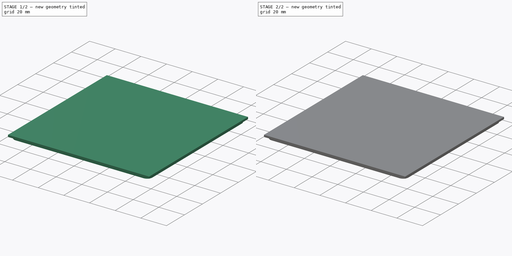
[diagram: build sequence overview — one tinted view per stage of 2, left to right]
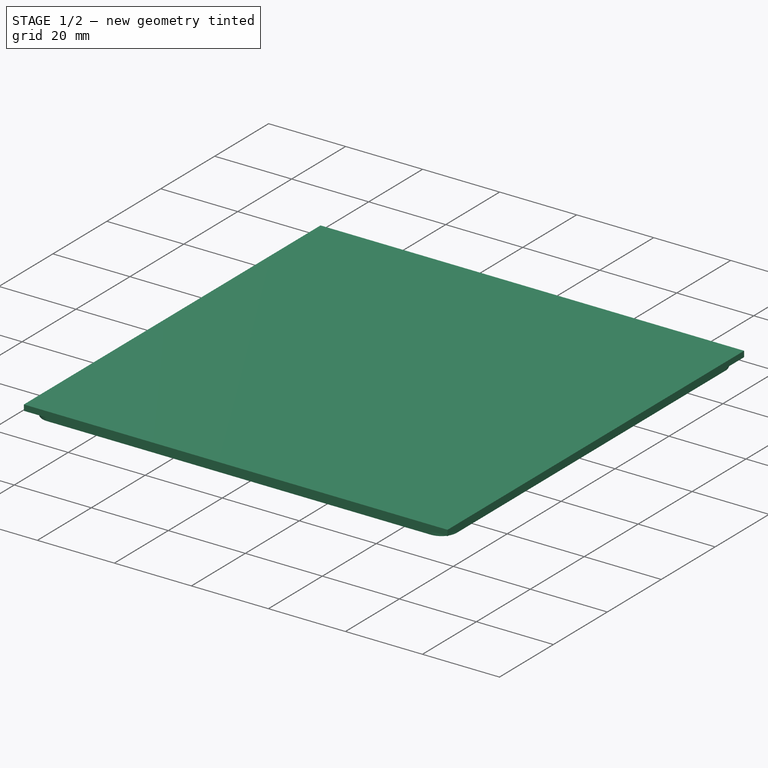
[diagram: stage 1 of 2 — iso view after this stage's code; geometry added in this stage tinted green]
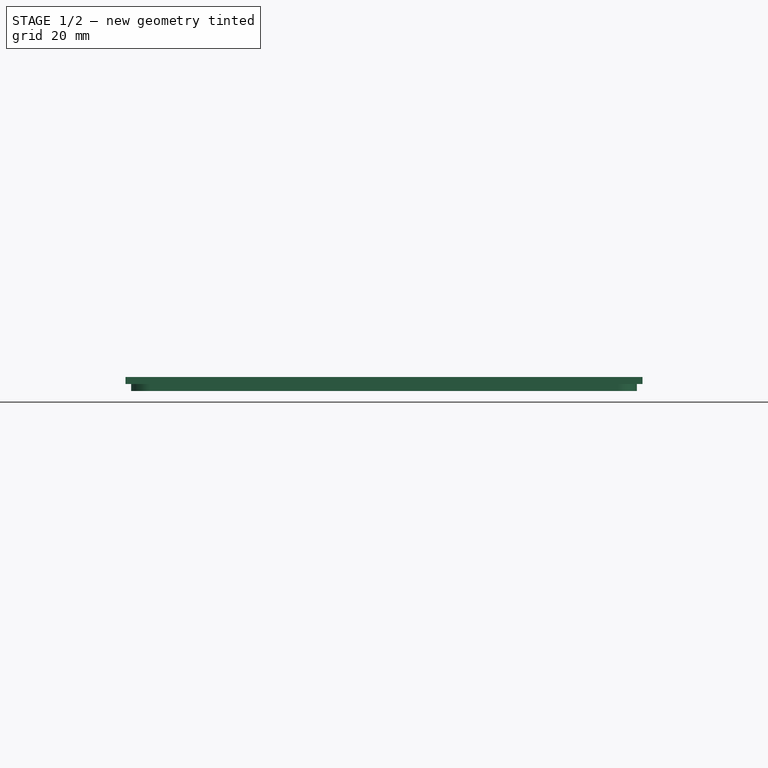
[diagram: stage 1 of 2 — front view after this stage's code; geometry added in this stage tinted green]
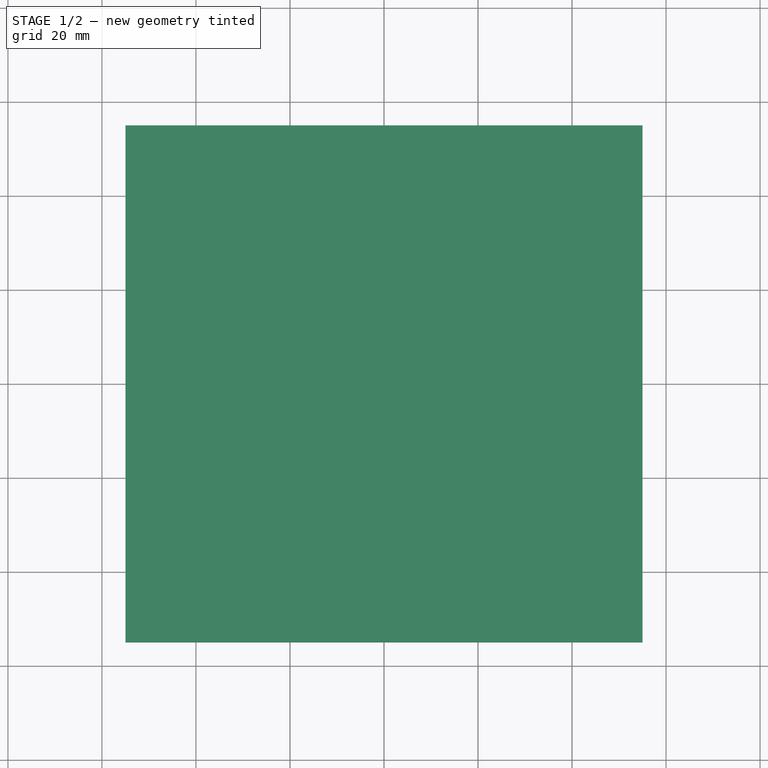
[diagram: stage 1 of 2 — top view after this stage's code; geometry added in this stage tinted green]
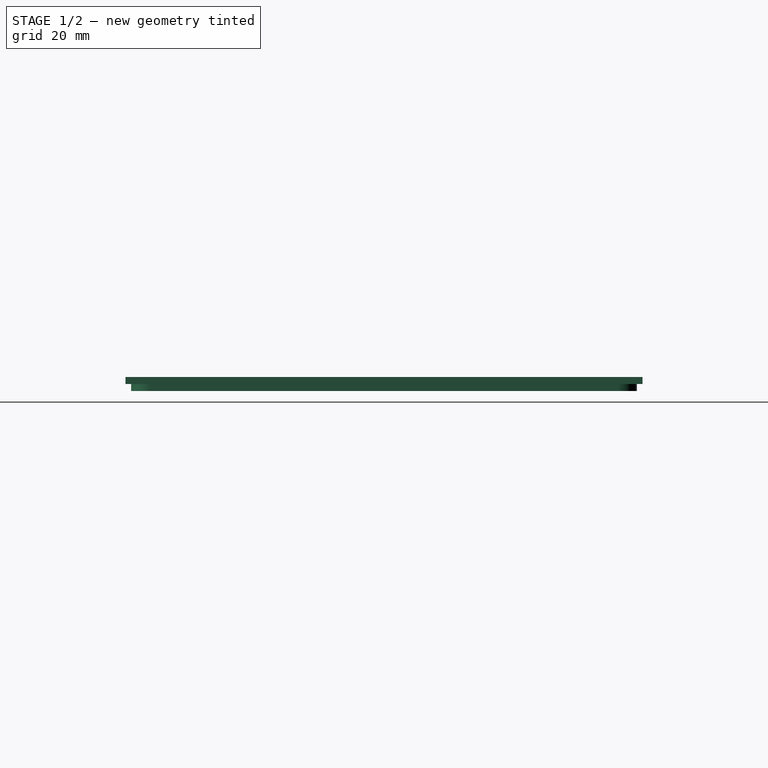
[diagram: stage 1 of 2 — right view after this stage's code; geometry added in this stage tinted green]
FCSTD DOCUMENT  (FreeCAD 0.18R16131 (Git))
Label: En16 Outline 11cm
License: All rights reserved
LicenseURL: http://en.wikipedia.org/wiki/All_rights_reserved
objects: Sketcher::SketchObject×3, PartDesign::Pad×3, PartDesign::Body×1
note: 10 computed .brp shape members not serialized (recipe doc carries the construction recipe); baked Part::Feature solids carry a one-line shape summary decoded from their .brp

FEATURE [Sketcher::SketchObject] Sketch001
  MapMode = 5
  Placement = pos=(0,0,0) rot=(1,0,0;3.14159rad)
  expr: Constraints[17] = 106.6 + 1
  sketch-geometry (19):
    g0: LineSegment StartX=-49.8 StartY=53.8 StartZ=0 EndX=49.8 EndY=53.8 EndZ=0
    g1: LineSegment StartX=53.8 StartY=49.8 StartZ=0 EndX=53.8 EndY=-49.8 EndZ=0
    g2: LineSegment StartX=49.8 StartY=-53.8 StartZ=0 EndX=-49.8 EndY=-53.8 EndZ=0
    g3: LineSegment StartX=-53.8 StartY=-49.8 StartZ=0 EndX=-53.8 EndY=49.8 EndZ=0
    g4: ArcOfCircle CenterX=49.8 CenterY=49.8 CenterZ=0 NormalX=0 NormalY=0 NormalZ=1 AngleXU=0 Radius=4 StartAngle=7e-16 EndAngle=1.5708
    g5: ArcOfCircle CenterX=49.8 CenterY=-49.8 CenterZ=0 NormalX=0 NormalY=0 NormalZ=1 AngleXU=0 Radius=4 StartAngle=4.71239 EndAngle=6.28319
    g6: ArcOfCircle CenterX=-49.8 CenterY=-49.8 CenterZ=0 NormalX=0 NormalY=0 NormalZ=1 AngleXU=0 Radius=4 StartAngle=3.14159 EndAngle=4.71239
    g7: ArcOfCircle CenterX=-49.8 CenterY=49.8 CenterZ=0 NormalX=0 NormalY=0 NormalZ=1 AngleXU=0 Radius=4 StartAngle=1.5708 EndAngle=3.14159
    g8: LineSegment StartX=-49.8 StartY=52.8 StartZ=0 EndX=49.8 EndY=52.8 EndZ=0
    g9: LineSegment StartX=52.8 StartY=49.8 StartZ=0 EndX=52.8 EndY=-49.8 EndZ=0
    g10: LineSegment StartX=49.8 StartY=-52.8 StartZ=0 EndX=-49.8 EndY=-52.8 EndZ=0
    g11: LineSegment StartX=-52.8 StartY=-49.8 StartZ=0 EndX=-52.8 EndY=49.8 EndZ=0
    g12: ArcOfCircle CenterX=-49.8 CenterY=49.8 CenterZ=0 NormalX=0 NormalY=0 NormalZ=1 AngleXU=0 Radius=3 StartAngle=1.5708 EndAngle=3.14159
    g13: ArcOfCircle CenterX=49.8 CenterY=49.8 CenterZ=0 NormalX=0 NormalY=0 NormalZ=1 AngleXU=0 Radius=3 StartAngle=0 EndAngle=1.5708
    g14: ArcOfCircle CenterX=49.8 CenterY=-49.8 CenterZ=0 NormalX=0 NormalY=0 NormalZ=1 AngleXU=0 Radius=3 StartAngle=4.71239 EndAngle=6.28319
    g15: ArcOfCircle CenterX=-49.8 CenterY=-49.8 CenterZ=0 NormalX=0 NormalY=0 NormalZ=1 AngleXU=0 Radius=3 StartAngle=3.14159 EndAngle=4.71239
    g16: LineSegment [constr] StartX=-49.8 StartY=49.8 StartZ=0 EndX=0 EndY=0 EndZ=0
    g17: LineSegment [constr] StartX=0 StartY=0 StartZ=0 EndX=49.8 EndY=49.8 EndZ=0
    g18: LineSegment [constr] StartX=0 StartY=0 StartZ=0 EndX=-49.8 EndY=-49.8 EndZ=0
  constraints (44):
    c: Horizontal(g0)
    c: Horizontal(g2)
    c: Vertical(g1)
    c: Vertical(g3)
    c: Tangent(g0,g4) = 1.5708
    c: Tangent(g1,g4) = 1.5708
    c: Tangent(g1,g5) = 1.5708
    c: Tangent(g2,g5) = 1.5708
    c: Tangent(g2,g6) = 1.5708
    c: Tangent(g3,g6) = 1.5708
    c: Tangent(g3,g7) = 1.5708
    c: Tangent(g0,g7) = 1.5708
    c: Radius(g7) = 4
    c: Equal(g7,g4)
    c: Equal(g7,g5)
    c: Equal(g7,g6)
    c: Equal(g3,g0)
    c: DistanceX(g3,g1) = 107.6
    c: Horizontal(g8)
    c: Horizontal(g10)
    c: Vertical(g9)
    c: Vertical(g11)
    c: Tangent(g11,g12) = 1.5708
    c: Tangent(g8,g12) = 1.5708
    c: Tangent(g8,g13) = 1.5708
    c: Tangent(g9,g13) = 1.5708
    c: Tangent(g10,g14) = 1.5708
    c: Tangent(g9,g14) = 1.5708
    c: Tangent(g11,g15) = 1.5708
    c: Tangent(g10,g15) = 1.5708
    c: Equal(g15,g14)
    c: Equal(g15,g13)
    c: Equal(g15,g12)
    c: Coincident(g16,g7)
    c: Coincident(g16,g-1)
    c: Coincident(g17,g-1)
    c: Coincident(g17,g4)
    c: Coincident(g18,g-1)
    c: Coincident(g18,g6)
    c: Equal(g17,g16)
    c: Equal(g16,g18)
    c: Coincident(g12,g7)
    c: Coincident(g14,g5)
    c: DistanceY(g8,g0) = 1
FEATURE [Sketcher::SketchObject] Sketch
  MapMode = 5
  Support = -> [XY_Plane]
  sketch-geometry (5):
    g0: LineSegment StartX=-55 StartY=55 StartZ=0 EndX=-55 EndY=-55 EndZ=0
    g1: LineSegment StartX=-55 StartY=-55 StartZ=0 EndX=55 EndY=-55 EndZ=0
    g2: LineSegment StartX=55 StartY=-55 StartZ=0 EndX=55 EndY=55 EndZ=0
    g3: LineSegment StartX=55 StartY=55 StartZ=0 EndX=-55 EndY=55 EndZ=0
    g4: Circle [constr] CenterX=0 CenterY=0 CenterZ=0 NormalX=0 NormalY=0 NormalZ=1 AngleXU=0 Radius=77.7817
  constraints (14):
    c: Coincident(g0,g1)
    c: Coincident(g1,g2)
    c: Coincident(g2,g3)
    c: Coincident(g3,g0)
    c: Equal(g0,g1)
    c: Equal(g0,g2)
    c: Equal(g0,g3)
    c: PointOnObject(g0,g4)
    c: PointOnObject(g1,g4)
    c: PointOnObject(g2,g4)
    c: PointOnObject(g3,g4)
    c: Horizontal(g3)
    c: Coincident(g4,g-1)
    c: DistanceX(g3,g3) = 110
FEATURE [Sketcher::SketchObject] Sketch002
  MapMode = 5
  Placement = pos=(0,0,0) rot=(1,0,0;3.14159rad)
  sketch-geometry (79):
    g0: Circle CenterX=-40.005 CenterY=40.005 CenterZ=0 NormalX=0 NormalY=0 NormalZ=1 AngleXU=0 Radius=6
    g1: Circle CenterX=-40.005 CenterY=40.005 CenterZ=0 NormalX=0 NormalY=0 NormalZ=1 AngleXU=0 Radius=5
    g2: Circle CenterX=-40.005 CenterY=49.505 CenterZ=0 NormalX=0 NormalY=0 NormalZ=1 AngleXU=0 Radius=1.5
    g3: LineSegment [constr] StartX=-40.005 StartY=49.505 StartZ=0 EndX=-40.005 EndY=40.005 EndZ=0
    g4: Circle CenterX=-13.335 CenterY=40.005 CenterZ=0 NormalX=0 NormalY=0 NormalZ=1 AngleXU=0 Radius=6
    g5: Circle CenterX=-13.335 CenterY=40.005 CenterZ=0 NormalX=0 NormalY=0 NormalZ=1 AngleXU=0 Radius=5
    g6: Circle CenterX=-13.335 CenterY=49.505 CenterZ=0 NormalX=0 NormalY=0 NormalZ=1 AngleXU=0 Radius=1.5
    g7: LineSegment [constr] StartX=-13.335 StartY=49.505 StartZ=0 EndX=-13.335 EndY=40.005 EndZ=0
    g8: LineSegment [constr] StartX=-40.005 StartY=40.005 StartZ=0 EndX=-13.335 EndY=40.005 EndZ=0
    g9: Circle CenterX=13.335 CenterY=40.005 CenterZ=0 NormalX=0 NormalY=0 NormalZ=1 AngleXU=0 Radius=6
    g10: Circle CenterX=13.335 CenterY=40.005 CenterZ=0 NormalX=0 NormalY=0 NormalZ=1 AngleXU=0 Radius=5
    g11: Circle CenterX=13.335 CenterY=49.505 CenterZ=0 NormalX=0 NormalY=0 NormalZ=1 AngleXU=0 Radius=1.5
    g12: LineSegment [constr] StartX=13.335 StartY=49.505 StartZ=0 EndX=13.335 EndY=40.005 EndZ=0
    g13: LineSegment [constr] StartX=-13.335 StartY=40.005 StartZ=0 EndX=13.335 EndY=40.005 EndZ=0
    g14: Circle CenterX=40.005 CenterY=40.005 CenterZ=0 NormalX=0 NormalY=0 NormalZ=1 AngleXU=0 Radius=6
    g15: Circle CenterX=40.005 CenterY=40.005 CenterZ=0 NormalX=0 NormalY=0 NormalZ=1 AngleXU=0 Radius=5
    g16: Circle CenterX=40.005 CenterY=49.505 CenterZ=0 NormalX=0 NormalY=0 NormalZ=1 AngleXU=0 Radius=1.5
    g17: LineSegment [constr] StartX=40.005 StartY=49.505 StartZ=0 EndX=40.005 EndY=40.005 EndZ=0
    g18: LineSegment [constr] StartX=13.335 StartY=40.005 StartZ=0 EndX=40.005 EndY=40.005 EndZ=0
    g19: Circle CenterX=-40.005 CenterY=13.335 CenterZ=0 NormalX=0 NormalY=0 NormalZ=1 AngleXU=0 Radius=6
    g20: Circle CenterX=-40.005 CenterY=13.335 CenterZ=0 NormalX=0 NormalY=0 NormalZ=1 AngleXU=0 Radius=5
    g21: Circle CenterX=-40.005 CenterY=22.835 CenterZ=0 NormalX=0 NormalY=0 NormalZ=1 AngleXU=0 Radius=1.5
    g22: LineSegment [constr] StartX=-40.005 StartY=22.835 StartZ=0 EndX=-40.005 EndY=13.335 EndZ=0
    g23: LineSegment [constr] StartX=-40.005 StartY=40.005 StartZ=0 EndX=-40.005 EndY=13.335 EndZ=0
    g24: Circle CenterX=-13.335 CenterY=13.335 CenterZ=0 NormalX=0 NormalY=0 NormalZ=1 AngleXU=0 Radius=6
    g25: Circle CenterX=-13.335 CenterY=13.335 CenterZ=0 NormalX=0 NormalY=0 NormalZ=1 AngleXU=0 Radius=5
    g26: Circle CenterX=-13.335 CenterY=22.835 CenterZ=0 NormalX=0 NormalY=0 NormalZ=1 AngleXU=0 Radius=1.5
    g27: LineSegment [constr] StartX=-13.335 StartY=22.835 StartZ=0 EndX=-13.335 EndY=13.335 EndZ=0
    g28: LineSegment [constr] StartX=-40.005 StartY=13.335 StartZ=0 EndX=-13.335 EndY=13.335 EndZ=0
    g29: Circle CenterX=13.335 CenterY=13.335 CenterZ=0 NormalX=0 NormalY=0 NormalZ=1 AngleXU=0 Radius=6
    g30: Circle CenterX=13.335 CenterY=13.335 CenterZ=0 NormalX=0 NormalY=0 NormalZ=1 AngleXU=0 Radius=5
    g31: Circle CenterX=13.335 CenterY=22.835 CenterZ=0 NormalX=0 NormalY=0 NormalZ=1 AngleXU=0 Radius=1.5
    g32: LineSegment [constr] StartX=13.335 StartY=22.835 StartZ=0 EndX=13.335 EndY=13.335 EndZ=0
    g33: LineSegment [constr] StartX=-13.335 StartY=13.335 StartZ=0 EndX=13.335 EndY=13.335 EndZ=0
    g34: Circle CenterX=40.005 CenterY=13.335 CenterZ=0 NormalX=0 NormalY=0 NormalZ=1 AngleXU=0 Radius=6
    g35: Circle CenterX=40.005 CenterY=13.335 CenterZ=0 NormalX=0 NormalY=0 NormalZ=1 AngleXU=0 Radius=5
    g36: Circle CenterX=40.005 CenterY=22.835 CenterZ=0 NormalX=0 NormalY=0 NormalZ=1 AngleXU=0 Radius=1.5
    g37: LineSegment [constr] StartX=40.005 StartY=22.835 StartZ=0 EndX=40.005 EndY=13.335 EndZ=0
    g38: LineSegment [constr] StartX=13.335 StartY=13.335 StartZ=0 EndX=40.005 EndY=13.335 EndZ=0
    g39: Circle CenterX=-40.005 CenterY=-13.335 CenterZ=0 NormalX=0 NormalY=0 NormalZ=1 AngleXU=0 Radius=6
    g40: Circle CenterX=-40.005 CenterY=-13.335 CenterZ=0 NormalX=0 NormalY=0 NormalZ=1 AngleXU=0 Radius=5
    g41: Circle CenterX=-40.005 CenterY=-3.835 CenterZ=0 NormalX=0 NormalY=0 NormalZ=1 AngleXU=0 Radius=1.5
    g42: LineSegment [constr] StartX=-40.005 StartY=-3.835 StartZ=0 EndX=-40.005 EndY=-13.335 EndZ=0
    g43: LineSegment [constr] StartX=-40.005 StartY=13.335 StartZ=0 EndX=-40.005 EndY=-13.335 EndZ=0
    g44: Circle CenterX=-13.335 CenterY=-13.335 CenterZ=0 NormalX=0 NormalY=0 NormalZ=1 AngleXU=0 Radius=6
    g45: Circle CenterX=-13.335 CenterY=-13.335 CenterZ=0 NormalX=0 NormalY=0 NormalZ=1 AngleXU=0 Radius=5
    g46: Circle CenterX=-13.335 CenterY=-3.835 CenterZ=0 NormalX=0 NormalY=0 NormalZ=1 AngleXU=0 Radius=1.5
    g47: LineSegment [constr] StartX=-13.335 StartY=-3.835 StartZ=0 EndX=-13.335 EndY=-13.335 EndZ=0
    g48: LineSegment [constr] StartX=-40.005 StartY=-13.335 StartZ=0 EndX=-13.335 EndY=-13.335 EndZ=0
    g49: Circle CenterX=13.335 CenterY=-13.335 CenterZ=0 NormalX=0 NormalY=0 NormalZ=1 AngleXU=0 Radius=6
    g50: Circle CenterX=13.335 CenterY=-13.335 CenterZ=0 NormalX=0 NormalY=0 NormalZ=1 AngleXU=0 Radius=5
    g51: Circle CenterX=13.335 CenterY=-3.835 CenterZ=0 NormalX=0 NormalY=0 NormalZ=1 AngleXU=0 Radius=1.5
    g52: LineSegment [constr] StartX=13.335 StartY=-3.835 StartZ=0 EndX=13.335 EndY=-13.335 EndZ=0
    g53: LineSegment [constr] StartX=-13.335 StartY=-13.335 StartZ=0 EndX=13.335 EndY=-13.335 EndZ=0
    g54: Circle CenterX=40.005 CenterY=-13.335 CenterZ=0 NormalX=0 NormalY=0 NormalZ=1 AngleXU=0 Radius=6
    g55: Circle CenterX=40.005 CenterY=-13.335 CenterZ=0 NormalX=0 NormalY=0 NormalZ=1 AngleXU=0 Radius=5
    g56: Circle CenterX=40.005 CenterY=-3.835 CenterZ=0 NormalX=0 NormalY=0 NormalZ=1 AngleXU=0 Radius=1.5
    g57: LineSegment [constr] StartX=40.005 StartY=-3.835 StartZ=0 EndX=40.005 EndY=-13.335 EndZ=0
    g58: LineSegment [constr] StartX=13.335 StartY=-13.335 StartZ=0 EndX=40.005 EndY=-13.335 EndZ=0
    g59: Circle CenterX=-40.005 CenterY=-40.005 CenterZ=0 NormalX=0 NormalY=0 NormalZ=1 AngleXU=0 Radius=6
    g60: Circle CenterX=-40.005 CenterY=-40.005 CenterZ=0 NormalX=0 NormalY=0 NormalZ=1 AngleXU=0 Radius=5
    g61: Circle CenterX=-40.005 CenterY=-30.505 CenterZ=0 NormalX=0 NormalY=0 NormalZ=1 AngleXU=0 Radius=1.5
    g62: LineSegment [constr] StartX=-40.005 StartY=-30.505 StartZ=0 EndX=-40.005 EndY=-40.005 EndZ=0
    g63: LineSegment [constr] StartX=-40.005 StartY=-13.335 StartZ=0 EndX=-40.005 EndY=-40.005 EndZ=0
    g64: Circle CenterX=-13.335 CenterY=-40.005 CenterZ=0 NormalX=0 NormalY=0 NormalZ=1 AngleXU=0 Radius=6
    g65: Circle CenterX=-13.335 CenterY=-40.005 CenterZ=0 NormalX=0 NormalY=0 NormalZ=1 AngleXU=0 Radius=5
    g66: Circle CenterX=-13.335 CenterY=-30.505 CenterZ=0 NormalX=0 NormalY=0 NormalZ=1 AngleXU=0 Radius=1.5
    g67: LineSegment [constr] StartX=-13.335 StartY=-30.505 StartZ=0 EndX=-13.335 EndY=-40.005 EndZ=0
    g68: LineSegment [constr] StartX=-40.005 StartY=-40.005 StartZ=0 EndX=-13.335 EndY=-40.005 EndZ=0
    g69: Circle CenterX=13.335 CenterY=-40.005 CenterZ=0 NormalX=0 NormalY=0 NormalZ=1 AngleXU=0 Radius=6
    g70: Circle CenterX=13.335 CenterY=-40.005 CenterZ=0 NormalX=0 NormalY=0 NormalZ=1 AngleXU=0 Radius=5
    g71: Circle CenterX=13.335 CenterY=-30.505 CenterZ=0 NormalX=0 NormalY=0 NormalZ=1 AngleXU=0 Radius=1.5
    g72: LineSegment [constr] StartX=13.335 StartY=-30.505 StartZ=0 EndX=13.335 EndY=-40.005 EndZ=0
    g73: LineSegment [constr] StartX=-13.335 StartY=-40.005 StartZ=0 EndX=13.335 EndY=-40.005 EndZ=0
    g74: Circle CenterX=40.005 CenterY=-40.005 CenterZ=0 NormalX=0 NormalY=0 NormalZ=1 AngleXU=0 Radius=6
    g75: Circle CenterX=40.005 CenterY=-40.005 CenterZ=0 NormalX=0 NormalY=0 NormalZ=1 AngleXU=0 Radius=5
    g76: Circle CenterX=40.005 CenterY=-30.505 CenterZ=0 NormalX=0 NormalY=0 NormalZ=1 AngleXU=0 Radius=1.5
    g77: LineSegment [constr] StartX=40.005 StartY=-30.505 StartZ=0 EndX=40.005 EndY=-40.005 EndZ=0
    g78: LineSegment [constr] StartX=13.335 StartY=-40.005 StartZ=0 EndX=40.005 EndY=-40.005 EndZ=0
  constraints (190):
    c: DistanceX(g0,g-1) = 40.005
    c: Coincident(g1,g0)
    c: DistanceY(g-1,g0) = 40.005
    c: Radius(g2) = 1.5
    c: Coincident(g3,g2)
    c: Coincident(g3,g0)
    c: Vertical(g3)
    c: DistanceY(g0,g2) = 9.5
    c: Coincident(g5,g4)
    c: Coincident(g7,g6)
    c: Coincident(g7,g4)
    c: Vertical(g7)
    c: DistanceY(g4,g6) = 9.5
    c: Coincident(g0,g8)
    c: Coincident(g4,g8)
    c: Distance(g8) = 26.67
    c: Angle(g8) = 0
    c: Coincident(g10,g9)
    c: Coincident(g12,g11)
    c: Coincident(g12,g9)
    c: Vertical(g12)
    c: DistanceY(g9,g11) = 9.5
    c: Coincident(g4,g13)
    c: Coincident(g9,g13)
    c: Equal(g8,g13)
    c: Parallel(g13,g8)
    c: Coincident(g15,g14)
    c: Coincident(g17,g16)
    c: Coincident(g17,g14)
    c: Vertical(g17)
    c: DistanceY(g14,g16) = 9.5
    c: Coincident(g9,g18)
    c: Coincident(g14,g18)
    c: Equal(g8,g18)
    c: Parallel(g18,g8)
    c: Coincident(g20,g19)
    c: Coincident(g22,g21)
    c: Coincident(g22,g19)
    c: Vertical(g22)
    c: DistanceY(g19,g21) = 9.5
    c: Coincident(g0,g23)
    c: Coincident(g19,g23)
    c: Distance(g23) = 26.67
    c: Perpendicular(g23,g8)
    c: Coincident(g25,g24)
    c: Coincident(g27,g26)
    c: Coincident(g27,g24)
    c: Vertical(g27)
    c: DistanceY(g24,g26) = 9.5
    c: Coincident(g19,g28)
    c: Coincident(g24,g28)
    c: Equal(g8,g28)
    c: Parallel(g28,g8)
    c: Coincident(g30,g29)
    c: Coincident(g32,g31)
    c: Coincident(g32,g29)
    c: Vertical(g32)
    c: DistanceY(g29,g31) = 9.5
    c: Coincident(g24,g33)
    c: Coincident(g29,g33)
    c: Equal(g8,g33)
    c: Parallel(g33,g8)
    c: Coincident(g35,g34)
    c: Coincident(g37,g36)
    c: Coincident(g37,g34)
    c: Vertical(g37)
    c: DistanceY(g34,g36) = 9.5
    c: Coincident(g29,g38)
    c: Coincident(g34,g38)
    c: Equal(g8,g38)
    c: Parallel(g38,g8)
    c: Coincident(g40,g39)
    c: Coincident(g42,g41)
    c: Coincident(g42,g39)
    c: Vertical(g42)
    c: DistanceY(g39,g41) = 9.5
    c: Coincident(g19,g43)
    c: Coincident(g39,g43)
    c: Equal(g23,g43)
    c: Perpendicular(g43,g8)
    c: Coincident(g45,g44)
    c: Coincident(g47,g46)
    c: Coincident(g47,g44)
    c: Vertical(g47)
    c: DistanceY(g44,g46) = 9.5
    c: Coincident(g39,g48)
    c: Coincident(g44,g48)
    c: Equal(g8,g48)
    c: Parallel(g48,g8)
    c: Coincident(g50,g49)
    c: Coincident(g52,g51)
    c: Coincident(g52,g49)
    c: Vertical(g52)
    c: DistanceY(g49,g51) = 9.5
    c: Coincident(g44,g53)
    c: Coincident(g49,g53)
    c: Equal(g8,g53)
    c: Parallel(g53,g8)
    c: Coincident(g55,g54)
    c: Coincident(g57,g56)
    c: Coincident(g57,g54)
    c: Vertical(g57)
    c: DistanceY(g54,g56) = 9.5
    c: Coincident(g49,g58)
    c: Coincident(g54,g58)
    c: Equal(g8,g58)
    c: Parallel(g58,g8)
    c: Coincident(g60,g59)
    c: Coincident(g62,g61)
    c: Coincident(g62,g59)
    c: Vertical(g62)
    c: DistanceY(g59,g61) = 9.5
    c: Coincident(g39,g63)
    c: Coincident(g59,g63)
    c: Equal(g23,g63)
    c: Perpendicular(g63,g8)
    c: Coincident(g65,g64)
    c: Coincident(g67,g66)
    c: Coincident(g67,g64)
    c: Vertical(g67)
    c: DistanceY(g64,g66) = 9.5
    c: Coincident(g59,g68)
    c: Coincident(g64,g68)
    c: Equal(g8,g68)
    c: Parallel(g68,g8)
    c: Coincident(g70,g69)
    c: Coincident(g72,g71)
    c: Coincident(g72,g69)
    c: Vertical(g72)
    c: DistanceY(g69,g71) = 9.5
    c: Coincident(g64,g73)
    c: Coincident(g69,g73)
    c: Equal(g8,g73)
    c: Parallel(g73,g8)
    c: Coincident(g75,g74)
    c: Coincident(g77,g76)
    c: Coincident(g77,g74)
    c: Vertical(g77)
    c: DistanceY(g74,g76) = 9.5
    c: Coincident(g69,g78)
    c: Coincident(g74,g78)
    c: Equal(g8,g78)
    c: Parallel(g78,g8)
    c: Radius(g1) = 5
    c: Equal(g1,g5)
    c: Equal(g1,g10)
    c: Equal(g1,g15)
    c: Equal(g1,g35)
    c: Equal(g1,g30)
    c: Equal(g1,g25)
    c: Equal(g1,g20)
    c: Equal(g1,g40)
    c: Equal(g1,g45)
    c: Equal(g1,g50)
    c: Equal(g1,g55)
    c: Equal(g1,g60)
    c: Equal(g1,g65)
    c: Equal(g1,g70)
    c: Equal(g1,g75)
    c: Radius(g0) = 6
    c: Equal(g0,g4)
    c: Equal(g0,g9)
    c: Equal(g0,g14)
    c: Equal(g0,g34)
    c: Equal(g0,g29)
    c: Equal(g0,g24)
    c: Equal(g0,g19)
    c: Equal(g0,g39)
    c: Equal(g0,g44)
    c: Equal(g0,g49)
    c: Equal(g0,g54)
    c: Equal(g0,g59)
    c: Equal(g0,g64)
    c: Equal(g0,g74)
    c: Equal(g0,g69)
    c: Equal(g76,g71)
    c: Equal(g71,g66)
    c: Equal(g66,g61)
    c: Equal(g61,g41)
    c: Equal(g41,g46)
    c: Equal(g46,g51)
    c: Equal(g51,g56)
    c: Equal(g56,g36)
    c: Equal(g36,g31)
    c: Equal(g31,g26)
    c: Equal(g26,g21)
    c: Equal(g21,g16)
    c: Equal(g16,g11)
    c: Equal(g11,g6)
    c: Equal(g6,g2)
FEATURE [PartDesign::Pad] Pad
  Length = 1.5
  Length2 = 100
  Profile = -> Sketch
  Type = 0
FEATURE [PartDesign::Pad] Pad001
  BaseFeature = -> Pad
  Length = 1.5
  Length2 = 100
  Profile = -> Sketch001
  Type = 0
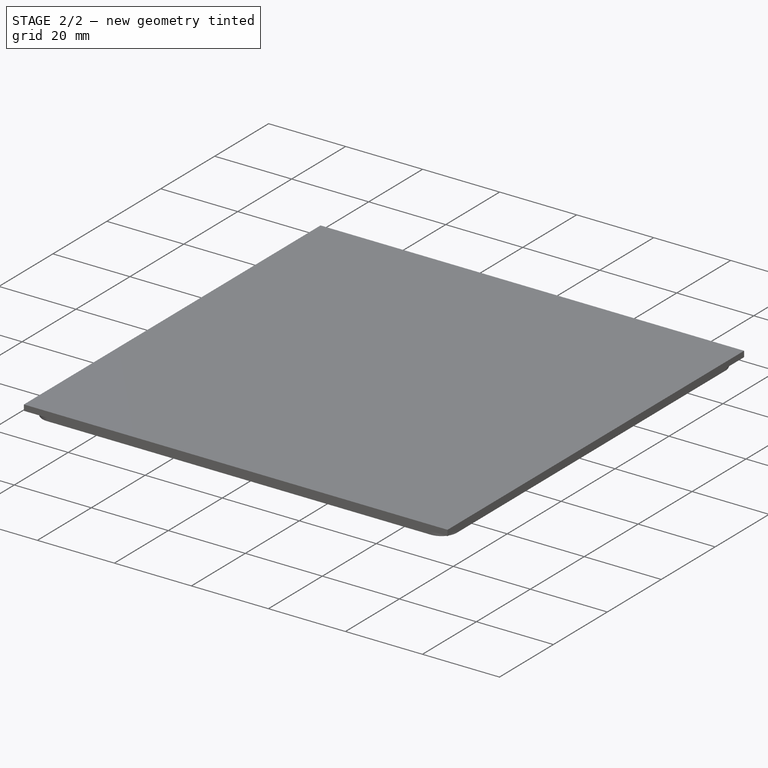
[diagram: stage 2 of 2 — iso view after this stage's code; geometry added in this stage tinted green]
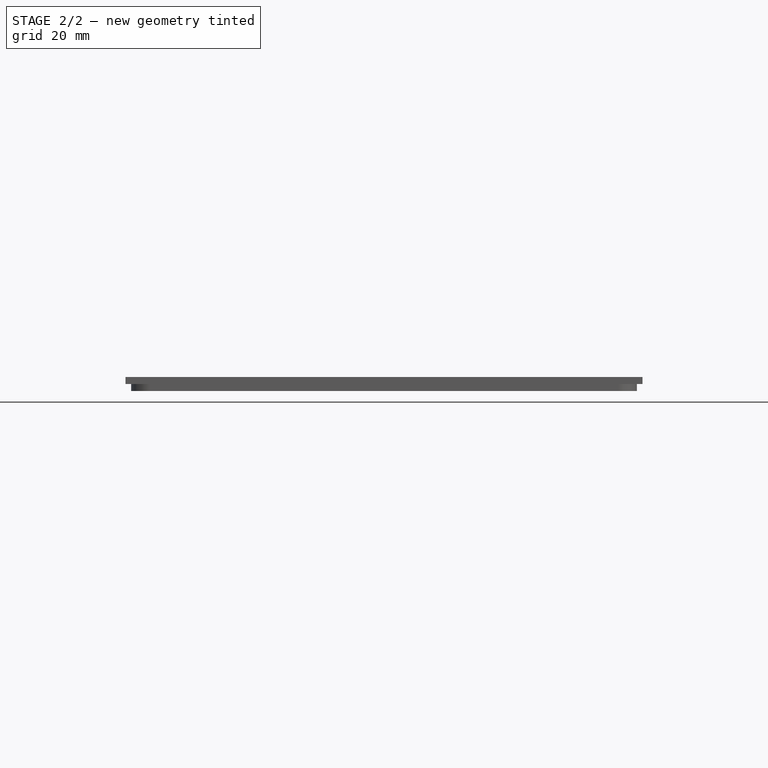
[diagram: stage 2 of 2 — front view after this stage's code; geometry added in this stage tinted green]
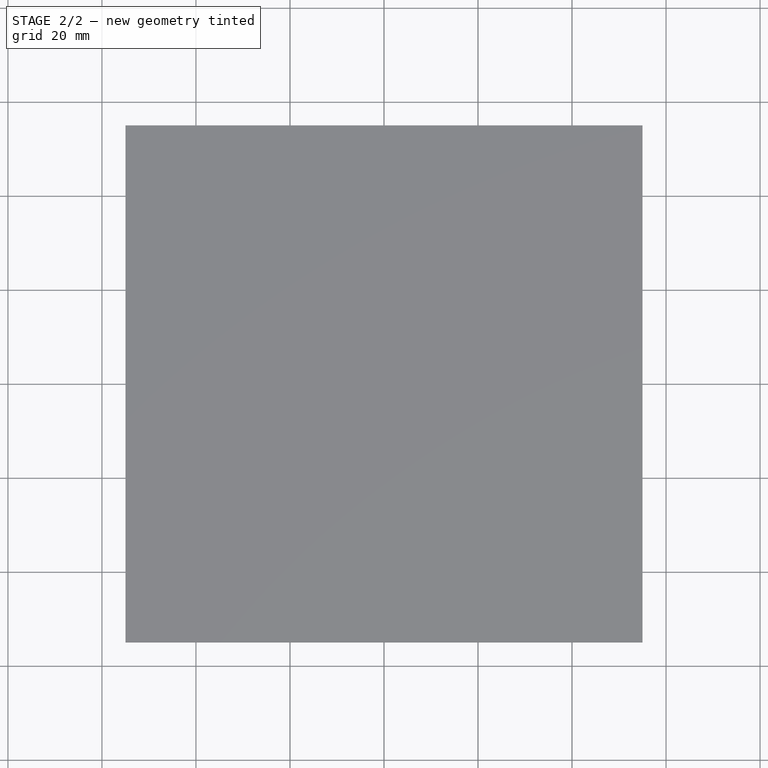
[diagram: stage 2 of 2 — top view after this stage's code; geometry added in this stage tinted green]
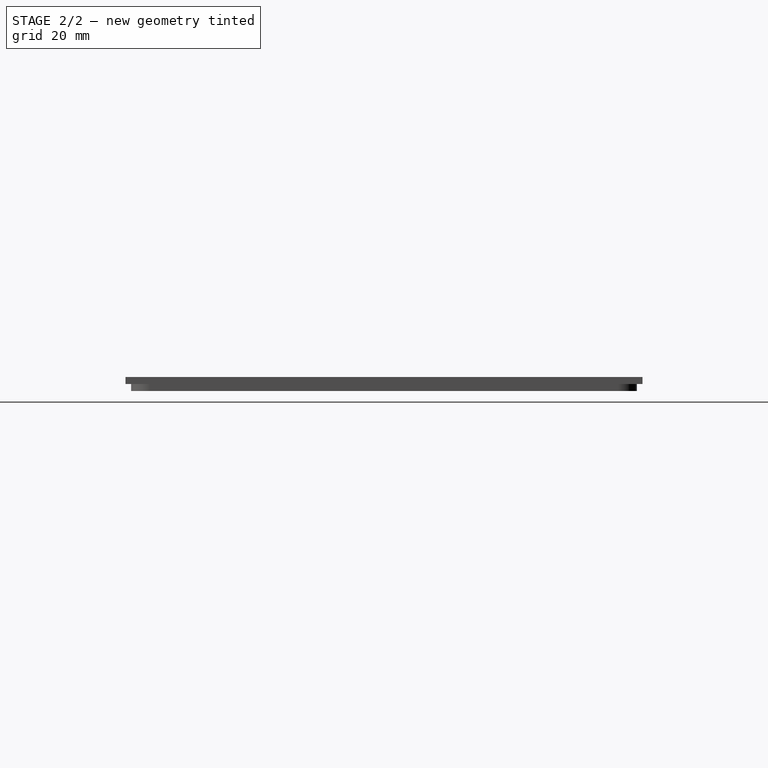
[diagram: stage 2 of 2 — right view after this stage's code; geometry added in this stage tinted green]
FEATURE [PartDesign::Pad] Pad002
  BaseFeature = -> Pad001
  Length = 1.5
  Length2 = 100
  Profile = -> Sketch002
  Type = 0
FEATURE [PartDesign::Body] Body  label="EN16_Outline"
  Group = -> [Sketch,Sketch001,Sketch002,Pad,Pad001,Pad002]
  Origin = -> Origin
  Tip = -> Pad002
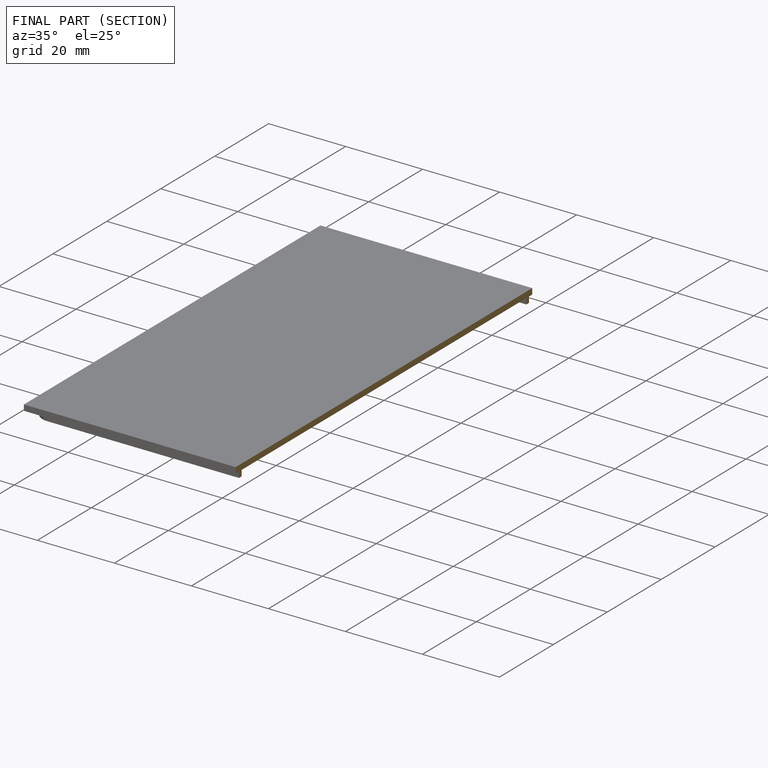
[diagram: finished part — half-section view (interior)]
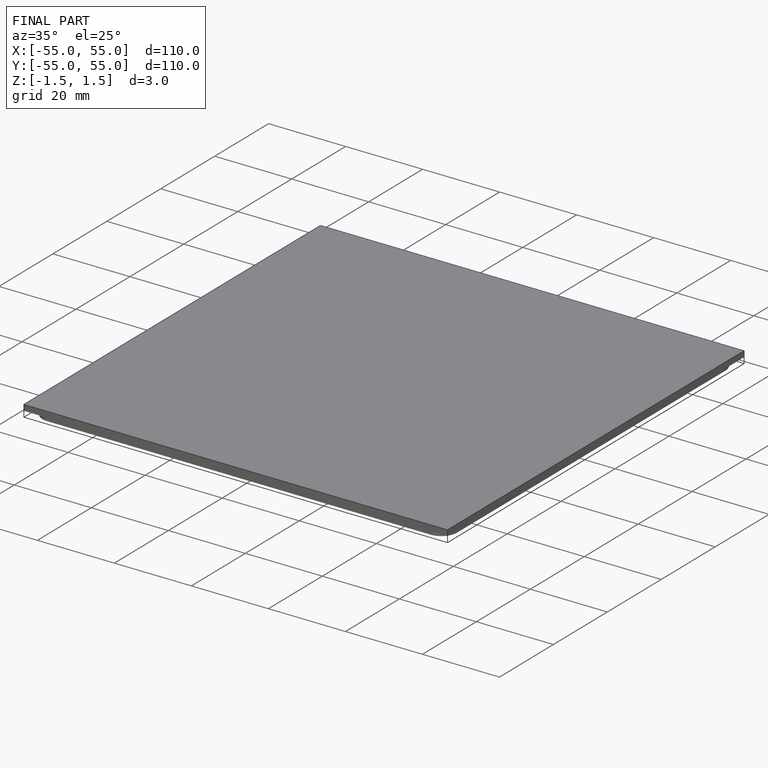
[diagram: finished part — iso view with bounding-box wireframe]
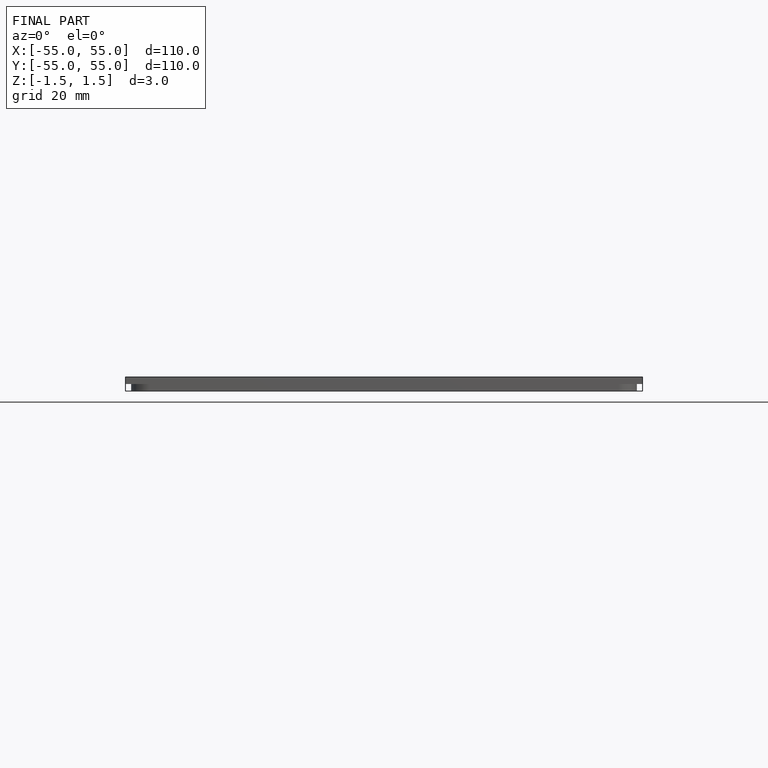
[diagram: finished part — front view with bounding-box wireframe]
